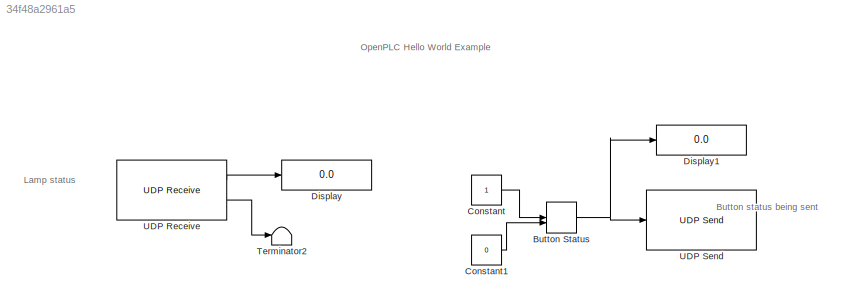
MODEL slx_34f48a2961a5
KIND model
BLOCK [ManualSwitch] Button Status
  CurrentSetting = 0
BLOCK [Constant] Constant
BLOCK [Constant] Constant1
  Value = 0
BLOCK [Display] Display
  Decimation = 1
  Ports = [1]
BLOCK [Display] Display1
  Decimation = 1
  Ports = [1]
BLOCK [Terminator] Terminator2
BLOCK [Reference] UDP Receive  REF=dspnetwork/UDP Receive
  Ports = [0, 2]
  SourceBlock = dspnetwork/UDP Receive
  SourceType = UDP Receive
  blockPlatform = LINUX
  blockingTime = 0
  dims = 1
  isVarSize = off
  localPort = 10002
  localURL = '0.0.0.0'
  recvBufferSize = 2
  remotePort = -1
  remoteURL = '0.0.0.0'
  sampletime = 0.1
  showBlockingTime = on
  signalDatatype = uint16
BLOCK [Reference] UDP Send  REF=dspnetwork/UDP Send
  Ports = [1]
  SourceBlock = dspnetwork/UDP Send
  SourceType = UDP Send
  blockPlatform = LINUX
  localPort = -1
  localPortSource = Automatically determine
  localURL = '255.255.255.255'
  remotePort = 10001
  remoteURL = 'localhost'
  sampletime = -1
  separateLengthPort = 0
ANNOTATION (root): Button status being sent
ANNOTATION (root): Lamp status
ANNOTATION (root): OpenPLC Hello World Example
NET Button Status:1 -> Display1:1, UDP Send:1
LINE Constant1:1 -> Button Status:2
LINE Constant:1 -> Button Status:1
LINE UDP Receive:1 -> Display:1
LINE UDP Receive:2 -> Terminator2:1
note: NET lines group one-source signal fan-out (src -> all destinations, sorted); 1:1 wires keep LINE
